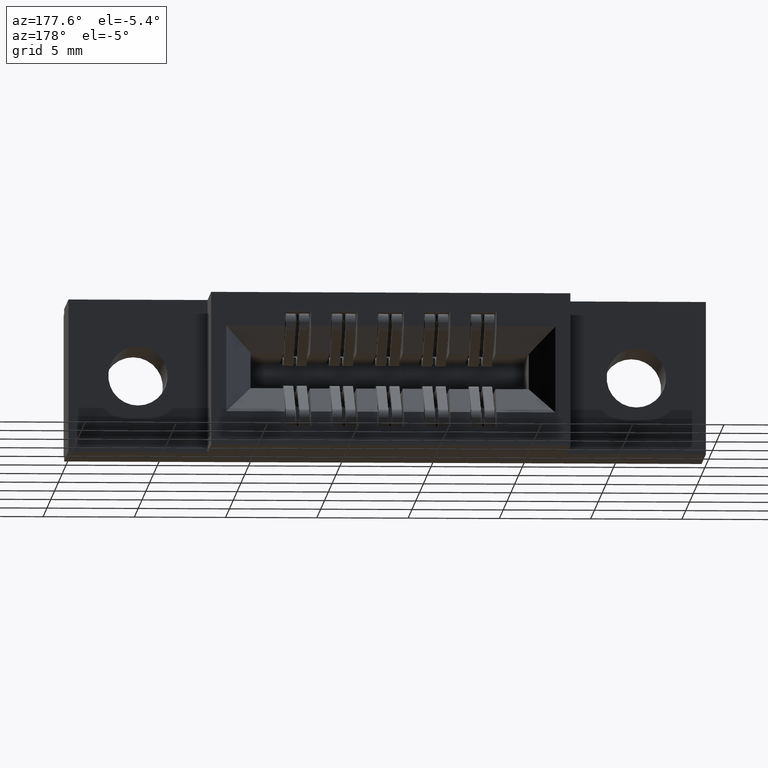
[diagram: clean part render]
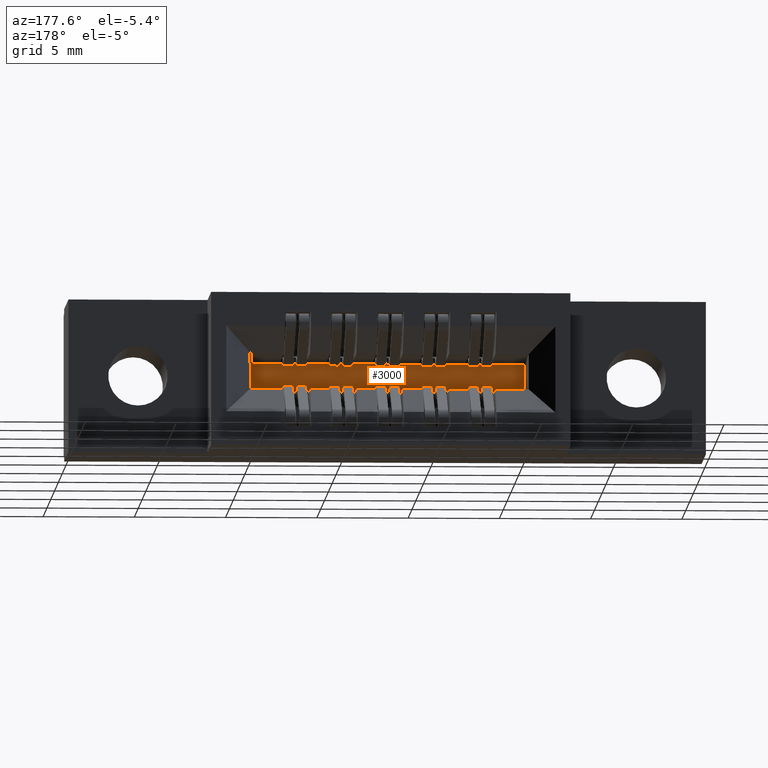
[diagram: same view with one face highlighted and labeled with its STEP entity id]
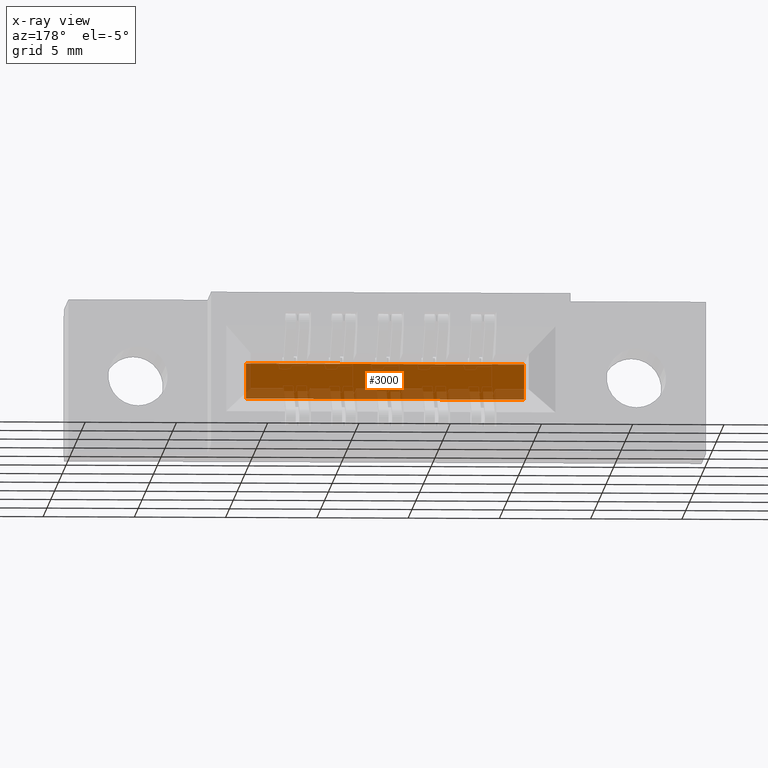
[diagram: x-ray of the same camera — body ghosted, the highlighted face saturated]
A machine part, auxiliary view. The second image highlights one B-rep face of the part: STEP entity #3000.
The next image is the same camera in x-ray: the body ghosted, the highlighted face saturated — about 26% of this face is hidden behind the body in this view.
In plain terms, the highlighted planar face has unit normal (0, -1, 0).
Its self-contained STEP definition (entity closure, byte-faithful):
#57 = ORIENTED_EDGE ( 'NONE', *, *, #5910, .T. ) ;
#74 = ORIENTED_EDGE ( 'NONE', *, *, #3489, .T. ) ;
#96 = CARTESIAN_POINT ( 'NONE',  ( 0.7594999999999994000, 0.1420000000000000200, -0.1269999999999997000 ) ) ;
#205 = ORIENTED_EDGE ( 'NONE', *, *, #4277, .T. ) ;
#320 = ORIENTED_EDGE ( 'NONE', *, *, #6199, .T. ) ;
#321 = EDGE_CURVE ( 'NONE', #3367, #10917, #9976, .T. ) ;
#368 = LINE ( 'NONE', #8197, #7395 ) ;
#406 = ORIENTED_EDGE ( 'NONE', *, *, #321, .T. ) ;
#443 = DIRECTION ( 'NONE',  ( 1.000000000000000000, 0.0000000000000000000, 0.0000000000000000000 ) ) ;
#485 = ORIENTED_EDGE ( 'NONE', *, *, #5543, .T. ) ;
#503 = ORIENTED_EDGE ( 'NONE', *, *, #6291, .T. ) ;
#568 = ORIENTED_EDGE ( 'NONE', *, *, #9443, .T. ) ;
#579 = CARTESIAN_POINT ( 'NONE',  ( 0.8594999999999993800, 0.1420000000000000200, -0.1269999999999997000 ) ) ;
#594 = DIRECTION ( 'NONE',  ( 0.0000000000000000000, 0.0000000000000000000, -1.000000000000000000 ) ) ;
#627 = ORIENTED_EDGE ( 'NONE', *, *, #5527, .T. ) ;
#653 = ORIENTED_EDGE ( 'NONE', *, *, #4760, .T. ) ;
#674 = ORIENTED_EDGE ( 'NONE', *, *, #6484, .T. ) ;
#754 = CARTESIAN_POINT ( 'NONE',  ( 0.9874999999999994900, 0.1420000000000000200, -0.1269999999999997000 ) ) ;
#804 = ORIENTED_EDGE ( 'NONE', *, *, #6551, .T. ) ;
#831 = CARTESIAN_POINT ( 'NONE',  ( 0.3874999999999995100, 0.1420000000000000200, -0.2029999999999997900 ) ) ;
#848 = ORIENTED_EDGE ( 'NONE', *, *, #3873, .T. ) ;
#853 = LINE ( 'NONE', #9077, #5467 ) ;
#855 = DIRECTION ( 'NONE',  ( -1.000000000000000000, -0.0000000000000000000, -5.691349986800548400E-017 ) ) ;
#857 = VERTEX_POINT ( 'NONE', #5197 ) ;
#889 = ORIENTED_EDGE ( 'NONE', *, *, #6567, .T. ) ;
#931 = VECTOR ( 'NONE', #9814, 39.37007874015748100 ) ;
#936 = ORIENTED_EDGE ( 'NONE', *, *, #3115, .T. ) ;
#951 = ORIENTED_EDGE ( 'NONE', *, *, #7271, .T. ) ;
#989 = VERTEX_POINT ( 'NONE', #96 ) ;
#995 = ORIENTED_EDGE ( 'NONE', *, *, #2364, .T. ) ;
#1000 = LINE ( 'NONE', #4429, #8077 ) ;
#1011 = ORIENTED_EDGE ( 'NONE', *, *, #7667, .T. ) ;
#1075 = VERTEX_POINT ( 'NONE', #9490 ) ;
#1128 = LINE ( 'NONE', #10404, #5693 ) ;
#1137 = ORIENTED_EDGE ( 'NONE', *, *, #4850, .T. ) ;
#1251 = LINE ( 'NONE', #9585, #5808 ) ;
#1456 = LINE ( 'NONE', #2303, #10330 ) ;
#1570 = DIRECTION ( 'NONE',  ( -1.000000000000000000, -0.0000000000000000000, -5.691349986800548400E-017 ) ) ;
#1604 = LINE ( 'NONE', #9604, #931 ) ;
#1722 = DIRECTION ( 'NONE',  ( 1.000000000000000000, 0.0000000000000000000, 0.0000000000000000000 ) ) ;
#1735 = DIRECTION ( 'NONE',  ( -0.0000000000000000000, -0.0000000000000000000, 1.000000000000000000 ) ) ;
#1871 = VECTOR ( 'NONE', #443, 39.37007874015748100 ) ;
#1891 = VECTOR ( 'NONE', #10071, 39.37007874015748100 ) ;
#1931 = CARTESIAN_POINT ( 'NONE',  ( 0.3874999999999995100, 0.1420000000000000200, -0.2029999999999997900 ) ) ;
#1934 = CARTESIAN_POINT ( 'NONE',  ( 0.3874999999999995100, 0.1420000000000000200, -0.2029999999999997900 ) ) ;
#1975 = CARTESIAN_POINT ( 'NONE',  ( 0.3874999999999995100, 0.1420000000000000200, -0.2029999999999997900 ) ) ;
#2146 = CARTESIAN_POINT ( 'NONE',  ( 0.8594999999999993800, 0.1420000000000000200, -0.2029999999999997600 ) ) ;
#2151 = VERTEX_POINT ( 'NONE', #579 ) ;
#2250 = DIRECTION ( 'NONE',  ( 1.000000000000000000, 0.0000000000000000000, 0.0000000000000000000 ) ) ;
#2303 = CARTESIAN_POINT ( 'NONE',  ( 0.3874999999999995100, 0.1420000000000000200, -0.1269999999999998100 ) ) ;
#2305 = CARTESIAN_POINT ( 'NONE',  ( 0.3874999999999995100, 0.1420000000000000200, -0.1269999999999998100 ) ) ;
#2364 = EDGE_CURVE ( 'NONE', #3078, #2151, #1000, .T. ) ;
#2451 = LINE ( 'NONE', #10280, #6893 ) ;
#2457 = VECTOR ( 'NONE', #7097, 39.37007874015748100 ) ;
#2748 = LINE ( 'NONE', #7143, #2457 ) ;
#2752 = EDGE_CURVE ( 'NONE', #1075, #4972, #9601, .T. ) ;
#2767 = VECTOR ( 'NONE', #6924, 39.37007874015748100 ) ;
#2858 = VECTOR ( 'NONE', #5427, 39.37007874015748100 ) ;
#2982 = CARTESIAN_POINT ( 'NONE',  ( 0.3874999999999995100, 0.1420000000000000200, -0.1269999999999998100 ) ) ;
#2995 = DIRECTION ( 'NONE',  ( 1.000000000000000000, 0.0000000000000000000, 0.0000000000000000000 ) ) ;
#3000 = ADVANCED_FACE ( 'NONE', ( #6935 ), #5147, .F. ) ;
#3074 = DIRECTION ( 'NONE',  ( 1.000000000000000000, 0.0000000000000000000, 0.0000000000000000000 ) ) ;
#3078 = VERTEX_POINT ( 'NONE', #3357 ) ;
#3115 = EDGE_CURVE ( 'NONE', #6581, #989, #10244, .T. ) ;
#3144 = CARTESIAN_POINT ( 'NONE',  ( 0.9874999999999994900, 0.1420000000000000200, -0.1269999999999997000 ) ) ;
#3156 = LINE ( 'NONE', #1934, #7288 ) ;
#3357 = CARTESIAN_POINT ( 'NONE',  ( 0.8154999999999994500, 0.1420000000000000200, -0.1269999999999997000 ) ) ;
#3367 = VERTEX_POINT ( 'NONE', #10215 ) ;
#3386 = VERTEX_POINT ( 'NONE', #9882 ) ;
#3439 = CARTESIAN_POINT ( 'NONE',  ( 0.3874999999999995100, 0.1420000000000000200, -0.1269999999999998100 ) ) ;
#3489 = EDGE_CURVE ( 'NONE', #7444, #10872, #8285, .T. ) ;
#3636 = CARTESIAN_POINT ( 'NONE',  ( 0.7594999999999994000, 0.1420000000000000200, -0.2029999999999997600 ) ) ;
#3756 = VERTEX_POINT ( 'NONE', #8148 ) ;
#3873 = EDGE_CURVE ( 'NONE', #5687, #8602, #10226, .T. ) ;
#4129 = VECTOR ( 'NONE', #8503, 39.37007874015748100 ) ;
#4250 = LINE ( 'NONE', #754, #1871 ) ;
#4277 = EDGE_CURVE ( 'NONE', #5385, #4539, #8263, .T. ) ;
#4429 = CARTESIAN_POINT ( 'NONE',  ( 0.3874999999999995100, 0.1420000000000000200, -0.1269999999999998100 ) ) ;
#4539 = VERTEX_POINT ( 'NONE', #10856 ) ;
#4760 = EDGE_CURVE ( 'NONE', #8398, #6189, #1456, .T. ) ;
#4787 = EDGE_CURVE ( 'NONE', #8026, #1075, #1128, .T. ) ;
#4850 = EDGE_CURVE ( 'NONE', #3756, #8026, #7430, .T. ) ;
#4947 = VERTEX_POINT ( 'NONE', #1931 ) ;
#4972 = VERTEX_POINT ( 'NONE', #10425 ) ;
#4992 = DIRECTION ( 'NONE',  ( -1.000000000000000000, -0.0000000000000000000, -5.691349986800548400E-017 ) ) ;
#5009 = AXIS2_PLACEMENT_3D ( 'NONE', #5730, #6033, #6699 ) ;
#5055 = EDGE_CURVE ( 'NONE', #857, #3386, #1604, .T. ) ;
#5147 = PLANE ( 'NONE',  #5009 ) ;
#5157 = CARTESIAN_POINT ( 'NONE',  ( 0.3874999999999995100, 0.1420000000000000200, -0.1269999999999998100 ) ) ;
#5197 = CARTESIAN_POINT ( 'NONE',  ( 0.6594999999999993100, 0.1420000000000000200, -0.2029999999999997900 ) ) ;
#5239 = VECTOR ( 'NONE', #1735, 39.37007874015748100 ) ;
#5295 = VECTOR ( 'NONE', #8210, 39.37007874015748100 ) ;
#5385 = VERTEX_POINT ( 'NONE', #3636 ) ;
#5405 = CARTESIAN_POINT ( 'NONE',  ( 0.3874999999999995100, 0.1420000000000000200, -0.2029999999999997900 ) ) ;
#5427 = DIRECTION ( 'NONE',  ( -1.000000000000000000, -0.0000000000000000000, -5.691349986800548400E-017 ) ) ;
#5460 = CARTESIAN_POINT ( 'NONE',  ( 0.5154999999999995100, 0.1420000000000000200, -0.2029999999999999300 ) ) ;
#5463 = CARTESIAN_POINT ( 'NONE',  ( 0.4594999999999995200, 0.1420000000000000200, -0.2029999999999999300 ) ) ;
#5467 = VECTOR ( 'NONE', #6757, 39.37007874015748100 ) ;
#5527 = EDGE_CURVE ( 'NONE', #4947, #7931, #9771, .T. ) ;
#5543 = EDGE_CURVE ( 'NONE', #6822, #4947, #3156, .T. ) ;
#5674 = DIRECTION ( 'NONE',  ( 1.000000000000000000, 0.0000000000000000000, 0.0000000000000000000 ) ) ;
#5687 = VERTEX_POINT ( 'NONE', #10893 ) ;
#5693 = VECTOR ( 'NONE', #594, 39.37007874015748100 ) ;
#5730 = CARTESIAN_POINT ( 'NONE',  ( 0.9874999999999994900, 0.1420000000000000200, -0.2029999999999997600 ) ) ;
#5800 = VECTOR ( 'NONE', #3074, 39.37007874015748100 ) ;
#5808 = VECTOR ( 'NONE', #9611, 39.37007874015748100 ) ;
#5842 = EDGE_CURVE ( 'NONE', #4972, #7444, #2451, .T. ) ;
#5860 = VECTOR ( 'NONE', #2995, 39.37007874015748100 ) ;
#5910 = EDGE_CURVE ( 'NONE', #10872, #5385, #8964, .T. ) ;
#5943 = VERTEX_POINT ( 'NONE', #9875 ) ;
#5984 = EDGE_CURVE ( 'NONE', #4539, #857, #1251, .T. ) ;
#6033 = DIRECTION ( 'NONE',  ( 0.0000000000000000000, -1.000000000000000000, 0.0000000000000000000 ) ) ;
#6065 = LINE ( 'NONE', #3144, #5800 ) ;
#6083 = VECTOR ( 'NONE', #4992, 39.37007874015748100 ) ;
#6098 = VECTOR ( 'NONE', #2250, 39.37007874015748100 ) ;
#6189 = VERTEX_POINT ( 'NONE', #8662 ) ;
#6199 = EDGE_CURVE ( 'NONE', #3386, #3367, #6480, .T. ) ;
#6291 = EDGE_CURVE ( 'NONE', #10917, #6822, #368, .T. ) ;
#6386 = VECTOR ( 'NONE', #855, 39.37007874015748100 ) ;
#6480 = LINE ( 'NONE', #8513, #4129 ) ;
#6484 = EDGE_CURVE ( 'NONE', #5943, #8398, #2748, .T. ) ;
#6487 = ORIENTED_EDGE ( 'NONE', *, *, #5055, .T. ) ;
#6551 = EDGE_CURVE ( 'NONE', #6189, #5687, #10639, .T. ) ;
#6567 = EDGE_CURVE ( 'NONE', #8602, #6581, #8483, .T. ) ;
#6581 = VERTEX_POINT ( 'NONE', #6625 ) ;
#6592 = CARTESIAN_POINT ( 'NONE',  ( 0.9874999999999994900, 0.1420000000000000200, -0.1269999999999997000 ) ) ;
#6603 = DIRECTION ( 'NONE',  ( 1.000000000000000000, 0.0000000000000000000, 0.0000000000000000000 ) ) ;
#6625 = CARTESIAN_POINT ( 'NONE',  ( 0.7154999999999994700, 0.1420000000000000200, -0.1269999999999997000 ) ) ;
#6637 = DIRECTION ( 'NONE',  ( 1.000000000000000000, 0.0000000000000000000, 0.0000000000000000000 ) ) ;
#6699 = DIRECTION ( 'NONE',  ( 0.0000000000000000000, -0.0000000000000000000, -1.000000000000000000 ) ) ;
#6717 = ORIENTED_EDGE ( 'NONE', *, *, #4787, .T. ) ;
#6757 = DIRECTION ( 'NONE',  ( 1.000000000000000000, 0.0000000000000000000, 0.0000000000000000000 ) ) ;
#6822 = VERTEX_POINT ( 'NONE', #5463 ) ;
#6862 = CARTESIAN_POINT ( 'NONE',  ( 0.9874999999999994900, 0.1420000000000000200, -0.1269999999999997000 ) ) ;
#6893 = VECTOR ( 'NONE', #10230, 39.37007874015748100 ) ;
#6924 = DIRECTION ( 'NONE',  ( 1.000000000000000000, 0.0000000000000000000, 0.0000000000000000000 ) ) ;
#6935 = FACE_OUTER_BOUND ( 'NONE', #8776, .T. ) ;
#7097 = DIRECTION ( 'NONE',  ( 1.000000000000000000, 0.0000000000000000000, 0.0000000000000000000 ) ) ;
#7143 = CARTESIAN_POINT ( 'NONE',  ( 0.9874999999999994900, 0.1420000000000000200, -0.1269999999999997000 ) ) ;
#7271 = EDGE_CURVE ( 'NONE', #989, #3078, #6065, .T. ) ;
#7288 = VECTOR ( 'NONE', #1570, 39.37007874015748100 ) ;
#7310 = ORIENTED_EDGE ( 'NONE', *, *, #2752, .T. ) ;
#7395 = VECTOR ( 'NONE', #8047, 39.37007874015748100 ) ;
#7430 = LINE ( 'NONE', #5157, #2767 ) ;
#7444 = VERTEX_POINT ( 'NONE', #2146 ) ;
#7524 = ORIENTED_EDGE ( 'NONE', *, *, #5842, .T. ) ;
#7667 = EDGE_CURVE ( 'NONE', #2151, #3756, #4250, .T. ) ;
#7746 = CARTESIAN_POINT ( 'NONE',  ( 0.9874999999999994900, 0.1420000000000000200, -0.1269999999999998100 ) ) ;
#7931 = VERTEX_POINT ( 'NONE', #10589 ) ;
#8026 = VERTEX_POINT ( 'NONE', #7746 ) ;
#8047 = DIRECTION ( 'NONE',  ( -1.000000000000000000, 0.0000000000000000000, 0.0000000000000000000 ) ) ;
#8077 = VECTOR ( 'NONE', #5674, 39.37007874015748100 ) ;
#8131 = CARTESIAN_POINT ( 'NONE',  ( 0.5154999999999995100, 0.1420000000000000200, -0.1269999999999997000 ) ) ;
#8148 = CARTESIAN_POINT ( 'NONE',  ( 0.9154999999999994300, 0.1420000000000000200, -0.1269999999999997000 ) ) ;
#8197 = CARTESIAN_POINT ( 'NONE',  ( 0.9874999999999994900, 0.1420000000000000200, -0.2029999999999999300 ) ) ;
#8210 = DIRECTION ( 'NONE',  ( -1.000000000000000000, -0.0000000000000000000, -5.691349986800548400E-017 ) ) ;
#8263 = LINE ( 'NONE', #5405, #6083 ) ;
#8285 = LINE ( 'NONE', #831, #6386 ) ;
#8398 = VERTEX_POINT ( 'NONE', #8131 ) ;
#8483 = LINE ( 'NONE', #6592, #8721 ) ;
#8503 = DIRECTION ( 'NONE',  ( -1.000000000000000000, -0.0000000000000000000, -5.691349986800548400E-017 ) ) ;
#8513 = CARTESIAN_POINT ( 'NONE',  ( 0.3874999999999995100, 0.1420000000000000200, -0.2029999999999997900 ) ) ;
#8602 = VERTEX_POINT ( 'NONE', #9062 ) ;
#8662 = CARTESIAN_POINT ( 'NONE',  ( 0.5594999999999994400, 0.1420000000000000200, -0.1269999999999997000 ) ) ;
#8721 = VECTOR ( 'NONE', #6603, 39.37007874015748100 ) ;
#8776 = EDGE_LOOP ( 'NONE', ( #6717, #7310, #7524, #74, #57, #205, #10719, #6487, #320, #406, #503, #485, #627, #568, #674, #653, #804, #848, #889, #936, #951, #995, #1011, #1137 ) ) ;
#8964 = LINE ( 'NONE', #10109, #1891 ) ;
#9062 = CARTESIAN_POINT ( 'NONE',  ( 0.6594999999999995300, 0.1420000000000000200, -0.1269999999999997000 ) ) ;
#9077 = CARTESIAN_POINT ( 'NONE',  ( 0.3874999999999995100, 0.1420000000000000200, -0.1269999999999998100 ) ) ;
#9443 = EDGE_CURVE ( 'NONE', #7931, #5943, #853, .T. ) ;
#9490 = CARTESIAN_POINT ( 'NONE',  ( 0.9874999999999994900, 0.1420000000000000200, -0.2029999999999997600 ) ) ;
#9585 = CARTESIAN_POINT ( 'NONE',  ( 0.3874999999999995100, 0.1420000000000000200, -0.2029999999999997900 ) ) ;
#9601 = LINE ( 'NONE', #1975, #5295 ) ;
#9604 = CARTESIAN_POINT ( 'NONE',  ( 0.3874999999999995100, 0.1420000000000000200, -0.2029999999999997900 ) ) ;
#9611 = DIRECTION ( 'NONE',  ( -1.000000000000000000, -0.0000000000000000000, -5.691349986800548400E-017 ) ) ;
#9771 = LINE ( 'NONE', #2305, #5239 ) ;
#9814 = DIRECTION ( 'NONE',  ( -1.000000000000000000, -0.0000000000000000000, -5.691349986800548400E-017 ) ) ;
#9875 = CARTESIAN_POINT ( 'NONE',  ( 0.4594999999999995200, 0.1420000000000000200, -0.1269999999999997000 ) ) ;
#9882 = CARTESIAN_POINT ( 'NONE',  ( 0.6154999999999994900, 0.1420000000000000200, -0.2029999999999999300 ) ) ;
#9976 = LINE ( 'NONE', #10493, #2858 ) ;
#10071 = DIRECTION ( 'NONE',  ( -1.000000000000000000, -0.0000000000000000000, -5.691349986800548400E-017 ) ) ;
#10109 = CARTESIAN_POINT ( 'NONE',  ( 0.3874999999999995100, 0.1420000000000000200, -0.2029999999999997900 ) ) ;
#10215 = CARTESIAN_POINT ( 'NONE',  ( 0.5594999999999994400, 0.1420000000000000200, -0.2029999999999997900 ) ) ;
#10226 = LINE ( 'NONE', #3439, #6098 ) ;
#10230 = DIRECTION ( 'NONE',  ( -1.000000000000000000, -0.0000000000000000000, -5.691349986800548400E-017 ) ) ;
#10244 = LINE ( 'NONE', #2982, #5860 ) ;
#10280 = CARTESIAN_POINT ( 'NONE',  ( 0.3874999999999995100, 0.1420000000000000200, -0.2029999999999997900 ) ) ;
#10330 = VECTOR ( 'NONE', #1722, 39.37007874015748100 ) ;
#10404 = CARTESIAN_POINT ( 'NONE',  ( 0.9874999999999994900, 0.1420000000000000200, -0.1269999999999998100 ) ) ;
#10410 = VECTOR ( 'NONE', #6637, 39.37007874015748100 ) ;
#10425 = CARTESIAN_POINT ( 'NONE',  ( 0.9154999999999994300, 0.1420000000000000200, -0.2029999999999999300 ) ) ;
#10493 = CARTESIAN_POINT ( 'NONE',  ( 0.3874999999999995100, 0.1420000000000000200, -0.2029999999999997900 ) ) ;
#10589 = CARTESIAN_POINT ( 'NONE',  ( 0.3874999999999995100, 0.1420000000000000200, -0.1269999999999998100 ) ) ;
#10639 = LINE ( 'NONE', #6862, #10410 ) ;
#10719 = ORIENTED_EDGE ( 'NONE', *, *, #5984, .T. ) ;
#10830 = CARTESIAN_POINT ( 'NONE',  ( 0.8154999999999994500, 0.1420000000000000200, -0.2029999999999999300 ) ) ;
#10856 = CARTESIAN_POINT ( 'NONE',  ( 0.7154999999999994700, 0.1420000000000000200, -0.2029999999999999300 ) ) ;
#10872 = VERTEX_POINT ( 'NONE', #10830 ) ;
#10893 = CARTESIAN_POINT ( 'NONE',  ( 0.6154999999999994900, 0.1420000000000000200, -0.1269999999999997000 ) ) ;
#10917 = VERTEX_POINT ( 'NONE', #5460 ) ;